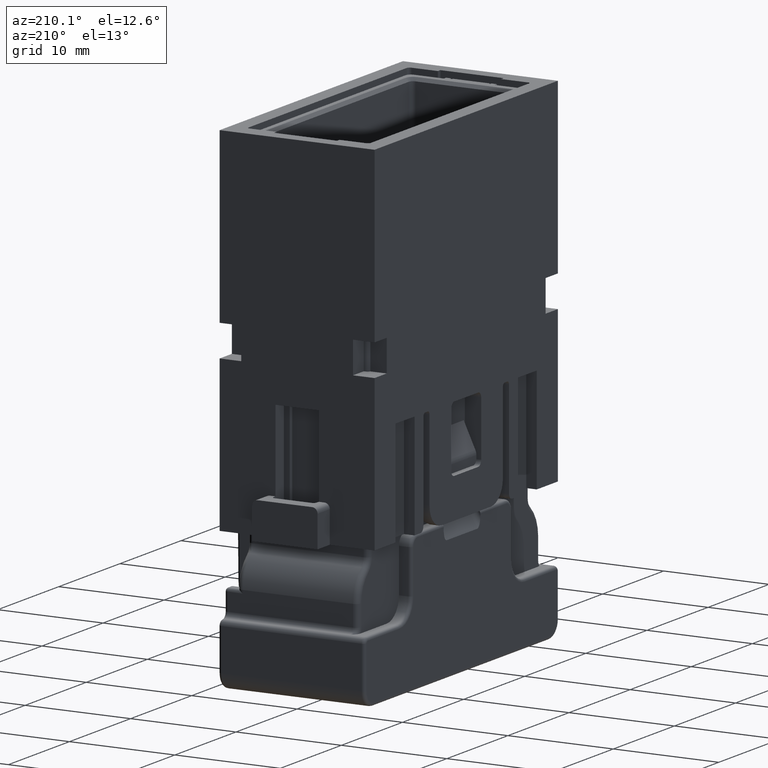
[diagram: clean part render]
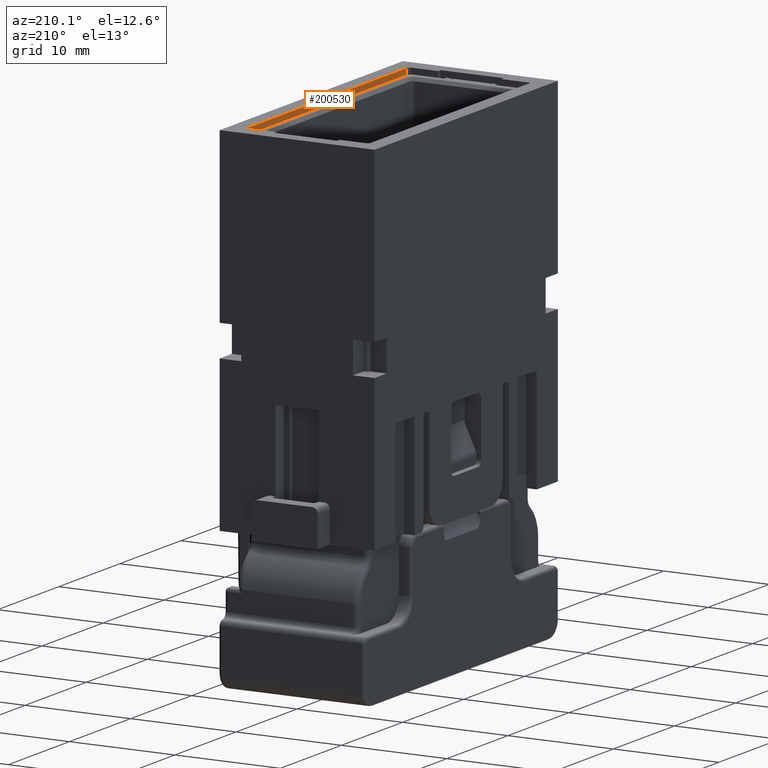
[diagram: same view with one face highlighted and labeled with its STEP entity id]
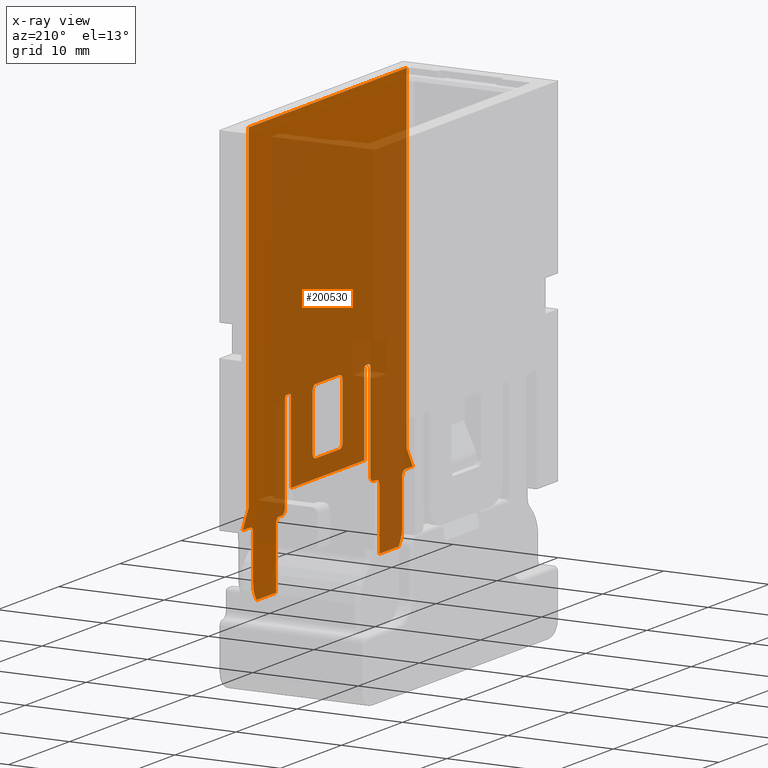
[diagram: x-ray of the same camera — body ghosted, the highlighted face saturated]
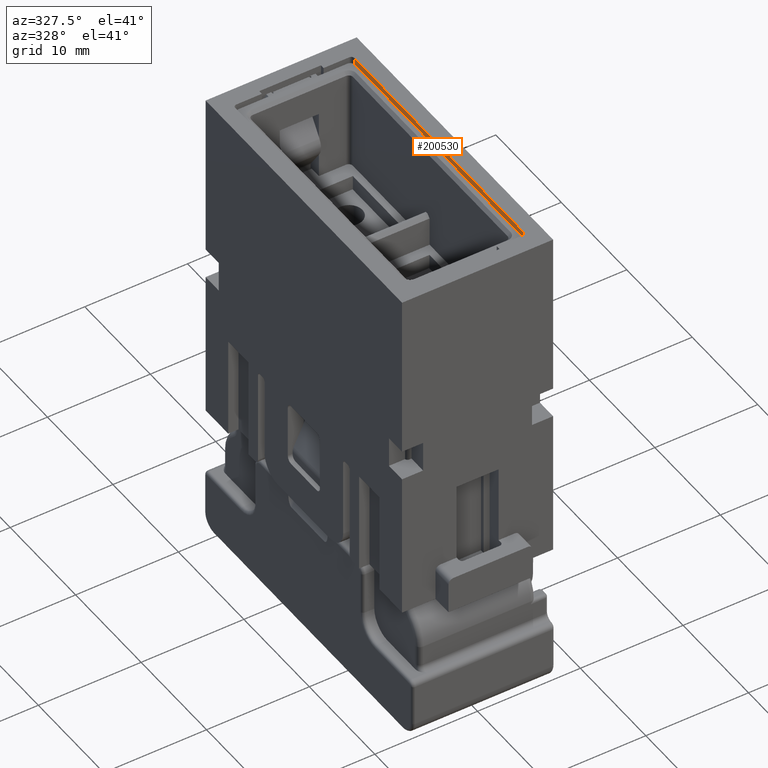
[diagram: same view with one face highlighted and labeled with its STEP entity id]
A machine part, auxiliary view. The second image highlights one B-rep face of the part: STEP entity #200530.
The next image is the same camera in x-ray: the body ghosted, the highlighted face saturated — about 74% of this face is hidden behind the body in this view.
A second angle (auxiliary view) of the same face is appended — the face is thin or edge-on in the first view.
In plain terms, the highlighted planar face has unit normal (1, -0, -0).
Its self-contained STEP definition (entity closure, byte-faithful):
#31520=CARTESIAN_POINT('',(52.325,53.1499999217758,-8.82249999999974));
#31530=DIRECTION('',(0.,0.,-1.));
#31540=VECTOR('',#31530,1.);
#31550=LINE('',#31520,#31540);
#31560=CARTESIAN_POINT('',(52.325,53.1499999217758,-32.4999999999998));
#31570=VERTEX_POINT('',#31560);
#31580=CARTESIAN_POINT('',(52.325,53.1499999217758,-38.2999999999998));
#31590=VERTEX_POINT('',#31580);
#31600=EDGE_CURVE('',#31570,#31590,#31550,.T.);
#60600=CARTESIAN_POINT('',(67.775,53.1499999217758,-22.3));
#60610=VERTEX_POINT('',#60600);
#60640=CARTESIAN_POINT('',(67.475,53.1499999217758,-22.3));
#60650=DIRECTION('',(0.,1.,-2.77555756156313E-17));
#60660=DIRECTION('',(0.,2.77555756156313E-17,1.));
#60670=AXIS2_PLACEMENT_3D('',#60640,#60650,#60660);
#60680=CIRCLE('',#60670,0.3);
#60690=CARTESIAN_POINT('',(67.475,53.1499999217758,-22.));
#60700=VERTEX_POINT('',#60690);
#60710=EDGE_CURVE('',#60700,#60610,#60680,.T.);
#62390=CARTESIAN_POINT('',(68.275,53.1499999217758,-31.4999999999998));
#62400=DIRECTION('',(0.,1.,0.));
#62410=DIRECTION('',(1.,0.,0.));
#62420=AXIS2_PLACEMENT_3D('',#62390,#62400,#62410);
#62430=CIRCLE('',#62420,0.5);
#62440=CARTESIAN_POINT('',(68.275,53.1499999217758,-31.9999999999998));
#62450=VERTEX_POINT('',#62440);
#62460=CARTESIAN_POINT('',(67.775,53.1499999217758,-31.4999999999998));
#62470=VERTEX_POINT('',#62460);
#62480=EDGE_CURVE('',#62450,#62470,#62430,.T.);
#64290=CARTESIAN_POINT('',(39.375,53.1499999217758,-31.9999999999998));
#64300=DIRECTION('',(1.,0.,0.));
#64310=VECTOR('',#64300,1.);
#64320=LINE('',#64290,#64310);
#64330=CARTESIAN_POINT('',(52.825,53.1499999217758,-31.9999999999998));
#64340=VERTEX_POINT('',#64330);
#64350=CARTESIAN_POINT('',(53.275,53.1499999217758,-31.9999999999998));
#64360=VERTEX_POINT('',#64350);
#64370=EDGE_CURVE('',#64340,#64360,#64320,.T.);
#65650=CARTESIAN_POINT('',(39.375,53.1499999217758,-22.0000000000001));
#65660=DIRECTION('',(-1.,-0.,-2.41809556967064E-15));
#65670=VECTOR('',#65660,1.);
#65680=LINE('',#65650,#65670);
#65690=CARTESIAN_POINT('',(54.475,53.1499999217758,-22.));
#65700=VERTEX_POINT('',#65690);
#65710=CARTESIAN_POINT('',(54.075,53.1499999217758,-22.));
#65720=VERTEX_POINT('',#65710);
#65730=EDGE_CURVE('',#65700,#65720,#65680,.T.);
#66270=CARTESIAN_POINT('',(67.075,53.1499999217758,-22.));
#66280=VERTEX_POINT('',#66270);
#66310=CARTESIAN_POINT('',(67.075,53.1499999217758,-22.3));
#66320=DIRECTION('',(-2.44929359829471E-16,-1.,2.77555756156307E-17));
#66330=DIRECTION('',(-1.,2.44929359829471E-16,0.));
#66340=AXIS2_PLACEMENT_3D('',#66310,#66320,#66330);
#66350=CIRCLE('',#66340,0.3);
#66360=CARTESIAN_POINT('',(66.775,53.1499999217758,-22.3));
#66370=VERTEX_POINT('',#66360);
#66380=EDGE_CURVE('',#66280,#66370,#66350,.T.);
#69220=CARTESIAN_POINT('',(48.5749999999799,53.1499999217758,
-36.7499999999997));
#69230=VERTEX_POINT('',#69220);
#69260=CARTESIAN_POINT('',(48.5749999999799,53.1499999217758,
-8.82249999999974));
#69270=DIRECTION('',(0.,0.,-1.));
#69280=VECTOR('',#69270,1.);
#69290=LINE('',#69260,#69280);
#69300=CARTESIAN_POINT('',(48.5749999999799,53.1499999217758,
-32.4999999999998));
#69310=VERTEX_POINT('',#69300);
#69320=EDGE_CURVE('',#69310,#69230,#69290,.T.);
#70010=CARTESIAN_POINT('',(54.475,53.1499999217758,-22.3));
#70020=DIRECTION('',(2.44929359829471E-16,1.,-2.77555756156307E-17));
#70030=DIRECTION('',(1.,-2.44929359829471E-16,0.));
#70040=AXIS2_PLACEMENT_3D('',#70010,#70020,#70030);
#70050=CIRCLE('',#70040,0.3);
#70060=CARTESIAN_POINT('',(54.775,53.1499999217758,-22.3));
#70070=VERTEX_POINT('',#70060);
#70080=EDGE_CURVE('',#65700,#70070,#70050,.T.);
#71690=CARTESIAN_POINT('',(53.775,53.1499999217758,-31.4999999999998));
#71700=VERTEX_POINT('',#71690);
#71730=CARTESIAN_POINT('',(53.275,53.1499999217758,-31.4999999999998));
#71740=DIRECTION('',(0.,-1.,0.));
#71750=DIRECTION('',(-1.,0.,0.));
#71760=AXIS2_PLACEMENT_3D('',#71730,#71740,#71750);
#71770=CIRCLE('',#71760,0.5);
#71780=EDGE_CURVE('',#64360,#71700,#71770,.T.);
#73210=CARTESIAN_POINT('',(67.775,53.1499999217758,-8.82249999999974));
#73220=DIRECTION('',(0.,0.,1.));
#73230=VECTOR('',#73220,1.);
#73240=LINE('',#73210,#73230);
#73250=EDGE_CURVE('',#62470,#60610,#73240,.T.);
#79100=EDGE_CURVE('',#60700,#66280,#65680,.T.);
#84020=CARTESIAN_POINT('',(54.775,53.1499999217758,-29.9641016151376));
#84030=VERTEX_POINT('',#84020);
#85020=CARTESIAN_POINT('',(66.775,53.1499999217758,-29.9641016151376));
#85030=VERTEX_POINT('',#85020);
#85060=CARTESIAN_POINT('',(39.375,53.1499999217758,-29.9641016151376));
#85070=DIRECTION('',(1.,0.,0.));
#85080=VECTOR('',#85070,1.);
#85090=LINE('',#85060,#85080);
#85100=EDGE_CURVE('',#84030,#85030,#85090,.T.);
#91530=CARTESIAN_POINT('',(66.775,53.1499999217758,-8.82249999999974));
#91540=DIRECTION('',(-2.51767549468094E-15,0.,1.));
#91550=VECTOR('',#91540,1.);
#91560=LINE('',#91530,#91550);
#91570=EDGE_CURVE('',#85030,#66370,#91560,.T.);
#92140=CARTESIAN_POINT('',(54.775,53.1499999217758,-8.82249999999974));
#92150=DIRECTION('',(2.51767549468094E-15,0.,-1.));
#92160=VECTOR('',#92150,1.);
#92170=LINE('',#92140,#92160);
#92180=EDGE_CURVE('',#70070,#84030,#92170,.T.);
#93370=CARTESIAN_POINT('',(53.775,53.1499999217758,-22.3));
#93380=VERTEX_POINT('',#93370);
#93410=CARTESIAN_POINT('',(53.775,53.1499999217758,-8.82249999999974));
#93420=DIRECTION('',(0.,0.,1.));
#93430=VECTOR('',#93420,1.);
#93440=LINE('',#93410,#93430);
#93450=EDGE_CURVE('',#71700,#93380,#93440,.T.);
#105370=CARTESIAN_POINT('',(48.0749999999799,53.1499999217758,
-32.4999999999998));
#105380=DIRECTION('',(0.,1.,0.));
#105390=DIRECTION('',(1.,0.,0.));
#105400=AXIS2_PLACEMENT_3D('',#105370,#105380,#105390);
#105410=CIRCLE('',#105400,0.5);
#105420=CARTESIAN_POINT('',(48.0749999999799,53.1499999217758,
-31.9999999999998));
#105430=VERTEX_POINT('',#105420);
#105440=EDGE_CURVE('',#105430,#69310,#105410,.T.);
#163090=CARTESIAN_POINT('',(54.075,53.1499999217758,-22.3));
#163100=DIRECTION('',(0.,-1.,2.77555756156313E-17));
#163110=DIRECTION('',(0.,-2.77555756156313E-17,-1.));
#163120=AXIS2_PLACEMENT_3D('',#163090,#163100,#163110);
#163130=CIRCLE('',#163120,0.3);
#163140=EDGE_CURVE('',#65720,#93380,#163130,.T.);
#167190=CARTESIAN_POINT('',(39.375,53.1499999217758,-38.2999999999998));
#167200=DIRECTION('',(-1.,0.,0.));
#167210=VECTOR('',#167200,1.);
#167220=LINE('',#167190,#167210);
#167230=CARTESIAN_POINT('',(49.1426517797991,53.1499999217758,
-38.2999999999998));
#167240=VERTEX_POINT('',#167230);
#167250=EDGE_CURVE('',#31590,#167240,#167220,.T.);
#193080=CARTESIAN_POINT('',(39.375,53.1499999217758,-31.9999999999998));
#193090=DIRECTION('',(1.,0.,0.));
#193100=VECTOR('',#193090,1.);
#193110=LINE('',#193080,#193100);
#193120=CARTESIAN_POINT('',(46.8500000000202,53.1499999217758,
-31.9999999999998));
#193130=VERTEX_POINT('',#193120);
#193140=EDGE_CURVE('',#193130,#105430,#193110,.T.);
#197500=CARTESIAN_POINT('',(39.375,53.1499999217758,-28.2499999999997));
#197510=DIRECTION('',(-1.,0.,0.));
#197520=VECTOR('',#197510,1.);
#197530=LINE('',#197500,#197520);
#197540=CARTESIAN_POINT('',(62.725,53.1499999217758,-28.2499999999997));
#197550=VERTEX_POINT('',#197540);
#197560=CARTESIAN_POINT('',(58.825,53.1499999217758,-28.2499999999997));
#197570=VERTEX_POINT('',#197560);
#197580=EDGE_CURVE('',#197550,#197570,#197530,.T.);
#197930=CARTESIAN_POINT('',(63.225,53.1499999217758,-22.5));
#197940=VERTEX_POINT('',#197930);
#197970=CARTESIAN_POINT('',(62.725,53.1499999217758,-22.5));
#197980=DIRECTION('',(2.44929359829471E-16,1.,-2.77555756156307E-17));
#197990=DIRECTION('',(1.,-2.44929359829471E-16,0.));
#198000=AXIS2_PLACEMENT_3D('',#197970,#197980,#197990);
#198010=CIRCLE('',#198000,0.5);
#198020=CARTESIAN_POINT('',(62.725,53.1499999217758,-22.));
#198030=VERTEX_POINT('',#198020);
#198040=EDGE_CURVE('',#198030,#197940,#198010,.T.);
#198220=CARTESIAN_POINT('',(58.825,53.1499999217758,-22.));
#198230=VERTEX_POINT('',#198220);
#198240=EDGE_CURVE('',#198030,#198230,#65680,.T.);
#198490=CARTESIAN_POINT('',(58.825,53.1499999217758,-22.5));
#198500=DIRECTION('',(-2.44929359829471E-16,-1.,2.77555756156307E-17));
#198510=DIRECTION('',(-1.,2.44929359829471E-16,0.));
#198520=AXIS2_PLACEMENT_3D('',#198490,#198500,#198510);
#198530=CIRCLE('',#198520,0.5);
#198540=CARTESIAN_POINT('',(58.325,53.1499999217758,-22.5));
#198550=VERTEX_POINT('',#198540);
#198560=EDGE_CURVE('',#198230,#198550,#198530,.T.);
#198760=CARTESIAN_POINT('',(47.8500000000202,53.1499999217758,
1.72750000000018));
#198770=DIRECTION('',(-0.,-1.,-0.));
#198780=DIRECTION('',(-1.,0.,0.));
#198790=AXIS2_PLACEMENT_3D('',#198760,#198770,#198780);
#198800=PLANE('',#198790);
#198810=ORIENTED_EDGE('',*,*,#91570,.F.);
#198820=ORIENTED_EDGE('',*,*,#66380,.T.);
#198830=ORIENTED_EDGE('',*,*,#79100,.T.);
#198840=ORIENTED_EDGE('',*,*,#60710,.F.);
#198850=ORIENTED_EDGE('',*,*,#73250,.T.);
#198860=ORIENTED_EDGE('',*,*,#62480,.T.);
#198870=CARTESIAN_POINT('',(39.375,53.1499999217758,-31.9999999999998));
#198880=DIRECTION('',(1.,0.,0.));
#198890=VECTOR('',#198880,1.);
#198900=LINE('',#198870,#198890);
#198910=CARTESIAN_POINT('',(68.725,53.1499999217758,-31.9999999999998));
#198920=VERTEX_POINT('',#198910);
#198930=EDGE_CURVE('',#62450,#198920,#198900,.T.);
#198940=ORIENTED_EDGE('',*,*,#198930,.F.);
#198950=CARTESIAN_POINT('',(68.725,53.1499999217758,-32.4999999999998));
#198960=DIRECTION('',(0.,1.,0.));
#198970=DIRECTION('',(1.,0.,0.));
#198980=AXIS2_PLACEMENT_3D('',#198950,#198960,#198970);
#198990=CIRCLE('',#198980,0.5);
#199000=CARTESIAN_POINT('',(69.225,53.1499999217758,-32.4999999999998));
#199010=VERTEX_POINT('',#199000);
#199020=EDGE_CURVE('',#198920,#199010,#198990,.T.);
#199030=ORIENTED_EDGE('',*,*,#199020,.F.);
#199040=CARTESIAN_POINT('',(69.225,53.1499999217758,-8.82249999999974));
#199050=DIRECTION('',(0.,0.,-1.));
#199060=VECTOR('',#199050,1.);
#199070=LINE('',#199040,#199060);
#199080=CARTESIAN_POINT('',(69.225,53.1499999217758,-38.2999999999998));
#199090=VERTEX_POINT('',#199080);
#199100=EDGE_CURVE('',#199010,#199090,#199070,.T.);
#199110=ORIENTED_EDGE('',*,*,#199100,.F.);
#199120=CARTESIAN_POINT('',(72.407348220201,53.1499999217758,
-38.2999999999998));
#199130=VERTEX_POINT('',#199120);
#199140=EDGE_CURVE('',#199130,#199090,#167220,.T.);
#199150=ORIENTED_EDGE('',*,*,#199140,.T.);
#199160=CARTESIAN_POINT('',(70.5750000000202,53.1499999217758,
-36.7499999999997));
#199170=DIRECTION('',(0.,-1.,0.));
#199180=DIRECTION('',(-1.,0.,-3.33066907387547E-16));
#199190=AXIS2_PLACEMENT_3D('',#199160,#199170,#199180);
#199200=CIRCLE('',#199190,2.4);
#199210=CARTESIAN_POINT('',(72.9750000000202,53.1499999217758,
-36.7499999999997));
#199220=VERTEX_POINT('',#199210);
#199230=EDGE_CURVE('',#199130,#199220,#199200,.T.);
#199240=ORIENTED_EDGE('',*,*,#199230,.F.);
#199250=CARTESIAN_POINT('',(72.9750000000202,53.1499999217758,
-8.82249999999974));
#199260=DIRECTION('',(0.,0.,-1.));
#199270=VECTOR('',#199260,1.);
#199280=LINE('',#199250,#199270);
#199290=CARTESIAN_POINT('',(72.9750000000202,53.1499999217758,
-32.4999999999998));
#199300=VERTEX_POINT('',#199290);
#199310=EDGE_CURVE('',#199300,#199220,#199280,.T.);
#199320=ORIENTED_EDGE('',*,*,#199310,.T.);
#199330=CARTESIAN_POINT('',(73.4750000000202,53.1499999217758,
-32.4999999999998));
#199340=DIRECTION('',(0.,1.,0.));
#199350=DIRECTION('',(1.,0.,0.));
#199360=AXIS2_PLACEMENT_3D('',#199330,#199340,#199350);
#199370=CIRCLE('',#199360,0.5);
#199380=CARTESIAN_POINT('',(73.4750000000202,53.1499999217758,
-31.9999999999998));
#199390=VERTEX_POINT('',#199380);
#199400=EDGE_CURVE('',#199300,#199390,#199370,.T.);
#199410=ORIENTED_EDGE('',*,*,#199400,.F.);
#199420=CARTESIAN_POINT('',(39.375,53.1499999217758,-31.9999999999998));
#199430=DIRECTION('',(1.,0.,0.));
#199440=VECTOR('',#199430,1.);
#199450=LINE('',#199420,#199440);
#199460=CARTESIAN_POINT('',(74.7000000000202,53.1499999217758,
-31.9999999999998));
#199470=VERTEX_POINT('',#199460);
#199480=EDGE_CURVE('',#199390,#199470,#199450,.T.);
#199490=ORIENTED_EDGE('',*,*,#199480,.F.);
#199500=CARTESIAN_POINT('',(61.1797916666867,53.1499999217758,
-8.82249999999974));
#199510=DIRECTION('',(-0.503871025524088,0.,0.863778900898432));
#199520=VECTOR('',#199510,1.);
#199530=LINE('',#199500,#199520);
#199540=CARTESIAN_POINT('',(73.7000000000202,53.1499999217759,
-30.2857142857141));
#199550=VERTEX_POINT('',#199540);
#199560=EDGE_CURVE('',#199470,#199550,#199530,.T.);
#199570=ORIENTED_EDGE('',*,*,#199560,.F.);
#199580=CARTESIAN_POINT('',(73.7000000000202,53.1499999217759,
1.72750000000018));
#199590=DIRECTION('',(0.,0.,-1.));
#199600=VECTOR('',#199590,1.);
#199610=LINE('',#199580,#199600);
#199620=CARTESIAN_POINT('',(73.7000000000202,53.1499999217759,
1.70000000000018));
#199630=VERTEX_POINT('',#199620);
#199640=EDGE_CURVE('',#199630,#199550,#199610,.T.);
#199650=ORIENTED_EDGE('',*,*,#199640,.T.);
#199660=CARTESIAN_POINT('',(39.375,53.1499999217758,1.70000000000018));
#199670=DIRECTION('',(-1.,0.,0.));
#199680=VECTOR('',#199670,1.);
#199690=LINE('',#199660,#199680);
#199700=CARTESIAN_POINT('',(47.8500000000202,53.1499999217758,
1.70000000000018));
#199710=VERTEX_POINT('',#199700);
#199720=EDGE_CURVE('',#199630,#199710,#199690,.T.);
#199730=ORIENTED_EDGE('',*,*,#199720,.F.);
#199740=CARTESIAN_POINT('',(47.8500000000202,53.1499999217758,
1.72750000000018));
#199750=DIRECTION('',(0.,0.,-1.));
#199760=VECTOR('',#199750,1.);
#199770=LINE('',#199740,#199760);
#199780=CARTESIAN_POINT('',(47.8500000000203,53.1499999217758,
-30.2857142857139));
#199790=VERTEX_POINT('',#199780);
#199800=EDGE_CURVE('',#199710,#199790,#199770,.T.);
#199810=ORIENTED_EDGE('',*,*,#199800,.F.);
#199820=CARTESIAN_POINT('',(60.3702083333536,53.1499999217758,
-8.82249999999974));
#199830=DIRECTION('',(0.503871025524086,0.,0.863778900898434));
#199840=VECTOR('',#199830,1.);
#199850=LINE('',#199820,#199840);
#199860=EDGE_CURVE('',#193130,#199790,#199850,.T.);
#199870=ORIENTED_EDGE('',*,*,#199860,.T.);
#199880=ORIENTED_EDGE('',*,*,#193140,.F.);
#199890=ORIENTED_EDGE('',*,*,#105440,.F.);
#199900=ORIENTED_EDGE('',*,*,#69320,.F.);
#199910=CARTESIAN_POINT('',(50.9749999999799,53.1499999217758,
-36.7499999999997));
#199920=DIRECTION('',(0.,1.,0.));
#199930=DIRECTION('',(1.,0.,3.33066907387547E-16));
#199940=AXIS2_PLACEMENT_3D('',#199910,#199920,#199930);
#199950=CIRCLE('',#199940,2.4);
#199960=EDGE_CURVE('',#167240,#69230,#199950,.T.);
#199970=ORIENTED_EDGE('',*,*,#199960,.T.);
#199980=ORIENTED_EDGE('',*,*,#167250,.T.);
#199990=ORIENTED_EDGE('',*,*,#31600,.T.);
#200000=CARTESIAN_POINT('',(52.825,53.1499999217758,-32.4999999999998));
#200010=DIRECTION('',(0.,1.,0.));
#200020=DIRECTION('',(1.,0.,0.));
#200030=AXIS2_PLACEMENT_3D('',#200000,#200010,#200020);
#200040=CIRCLE('',#200030,0.5);
#200050=EDGE_CURVE('',#31570,#64340,#200040,.T.);
#200060=ORIENTED_EDGE('',*,*,#200050,.F.);
#200070=ORIENTED_EDGE('',*,*,#64370,.F.);
#200080=ORIENTED_EDGE('',*,*,#71780,.F.);
#200090=ORIENTED_EDGE('',*,*,#93450,.F.);
#200100=ORIENTED_EDGE('',*,*,#163140,.T.);
#200110=ORIENTED_EDGE('',*,*,#65730,.T.);
#200120=ORIENTED_EDGE('',*,*,#70080,.F.);
#200130=ORIENTED_EDGE('',*,*,#92180,.F.);
#200140=ORIENTED_EDGE('',*,*,#85100,.F.);
#200150=EDGE_LOOP('',(#200140,#200130,#200120,#200110,#200100,#200090,
#200080,#200070,#200060,#199990,#199980,#199970,#199900,#199890,#199880,
#199870,#199810,#199730,#199650,#199570,#199490,#199410,#199320,#199240,
#199150,#199110,#199030,#198940,#198860,#198850,#198840,#198830,#198820,
#198810));
#200160=FACE_OUTER_BOUND('',#200150,.T.);
#200170=CARTESIAN_POINT('',(58.825,53.1499999217758,-27.7499999999997));
#200180=DIRECTION('',(2.44929359829471E-16,1.,0.));
#200190=DIRECTION('',(1.,-2.44929359829471E-16,0.));
#200200=AXIS2_PLACEMENT_3D('',#200170,#200180,#200190);
#200210=CIRCLE('',#200200,0.5);
#200220=CARTESIAN_POINT('',(58.325,53.1499999217758,-27.7499999999997));
#200230=VERTEX_POINT('',#200220);
#200240=EDGE_CURVE('',#197570,#200230,#200210,.T.);
#200250=ORIENTED_EDGE('',*,*,#200240,.F.);
#200260=CARTESIAN_POINT('',(58.325,53.1499999217758,-8.82249999999974));
#200270=DIRECTION('',(2.51767549468094E-15,0.,-1.));
#200280=VECTOR('',#200270,1.);
#200290=LINE('',#200260,#200280);
#200300=EDGE_CURVE('',#198550,#200230,#200290,.T.);
#200310=ORIENTED_EDGE('',*,*,#200300,.T.);
#200320=ORIENTED_EDGE('',*,*,#198560,.T.);
#200330=ORIENTED_EDGE('',*,*,#198240,.T.);
#200340=ORIENTED_EDGE('',*,*,#198040,.F.);
#200350=CARTESIAN_POINT('',(63.225,53.1499999217758,-8.82249999999974));
#200360=DIRECTION('',(-2.51767549468094E-15,0.,1.));
#200370=VECTOR('',#200360,1.);
#200380=LINE('',#200350,#200370);
#200390=CARTESIAN_POINT('',(63.225,53.1499999217758,-27.7499999999997));
#200400=VERTEX_POINT('',#200390);
#200410=EDGE_CURVE('',#200400,#197940,#200380,.T.);
#200420=ORIENTED_EDGE('',*,*,#200410,.T.);
#200430=CARTESIAN_POINT('',(62.725,53.1499999217758,-27.7499999999997));
#200440=DIRECTION('',(2.44929359829471E-16,1.,0.));
#200450=DIRECTION('',(1.,-2.44929359829471E-16,0.));
#200460=AXIS2_PLACEMENT_3D('',#200430,#200440,#200450);
#200470=CIRCLE('',#200460,0.5);
#200480=EDGE_CURVE('',#200400,#197550,#200470,.T.);
#200490=ORIENTED_EDGE('',*,*,#200480,.F.);
#200500=ORIENTED_EDGE('',*,*,#197580,.F.);
#200510=EDGE_LOOP('',(#200500,#200490,#200420,#200340,#200330,#200320,
#200310,#200250));
#200520=FACE_BOUND('',#200510,.T.);
#200530=ADVANCED_FACE('',(#200160,#200520),#198800,.F.);